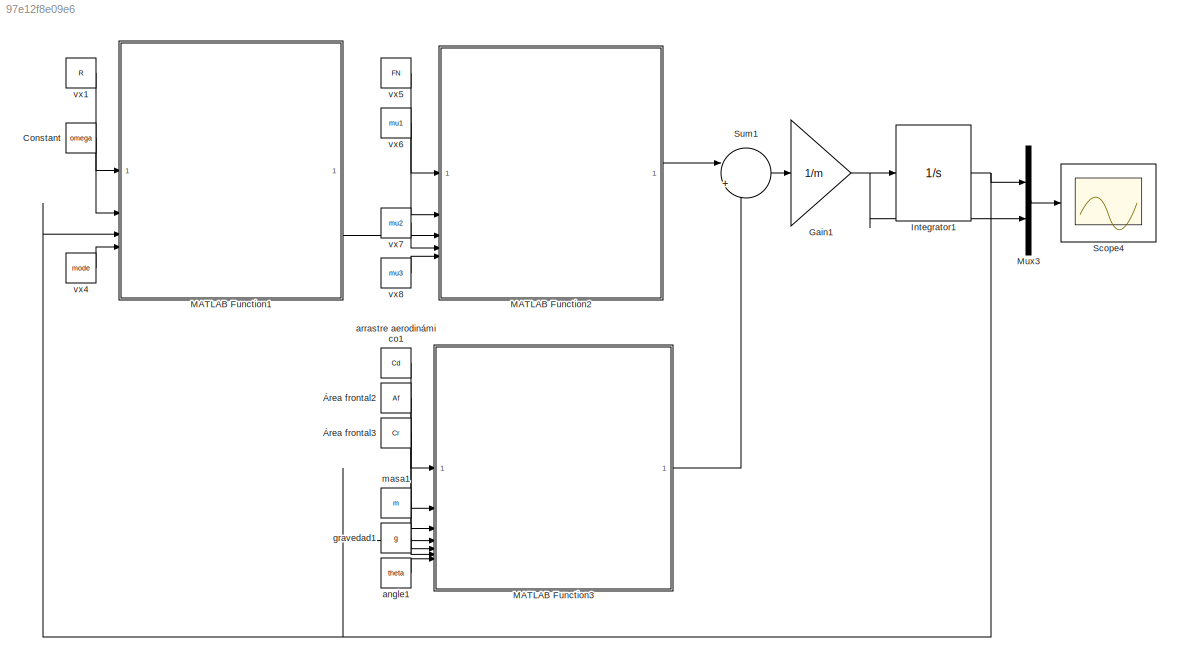
MODEL slx_97e12f8e09e6
KIND model
CONFIG AbsTol = auto
CONFIG EnableMultiTasking = off
CONFIG FixedStep = auto
CONFIG MaxStep = auto
CONFIG MinStep = auto
CONFIG RelTol = 1e-3
CONFIG SampleTimeConstraint = Unconstrained
CONFIG SolverName = VariableStepAuto
CONFIG StartTime = 0.0
CONFIG StopTime = 2
BLOCK [Constant] Constant
  Value = omega
BLOCK [Gain] Gain1
  Gain = 1/m
BLOCK [Integrator] Integrator1
  ZeroCross = off
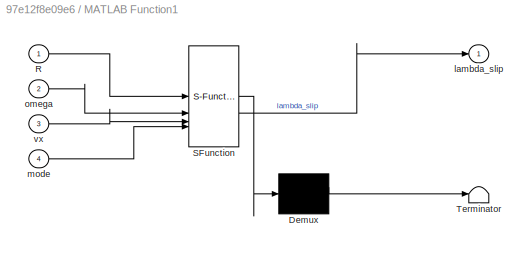
BLOCK [SubSystem] MATLAB Function1
  ErrorFcn = Stateflow.Translate.translate
  PermitHierarchicalResolution = ExplicitOnly
  SFBlockType = MATLAB Function
  TreatAsAtomicUnit = on
BLOCK [Demux] MATLAB Function1/ Demux 
  Outputs = 1
BLOCK [S-Function] MATLAB Function1/ SFunction 
  EnableBusSupport = on
  FunctionName = sf_sfun
  PortCounts = [4 2]
  SFcnIsStateOwnerBlock = off
  SFunctionDeploymentMode = off
  Tag = Stateflow S-Function 1
BLOCK [Terminator] MATLAB Function1/ Terminator 
BLOCK [Inport] MATLAB Function1/R
BLOCK [Outport] MATLAB Function1/lambda_slip
BLOCK [Inport] MATLAB Function1/mode
  Port = 4
BLOCK [Inport] MATLAB Function1/omega
  Port = 2
BLOCK [Inport] MATLAB Function1/vx
  Port = 3
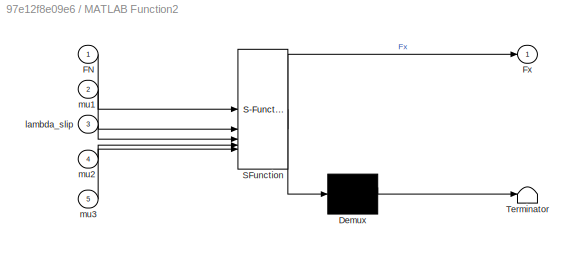
BLOCK [SubSystem] MATLAB Function2
  ErrorFcn = Stateflow.Translate.translate
  PermitHierarchicalResolution = ExplicitOnly
  SFBlockType = MATLAB Function
  TreatAsAtomicUnit = on
BLOCK [Demux] MATLAB Function2/ Demux 
  Outputs = 1
BLOCK [S-Function] MATLAB Function2/ SFunction 
  EnableBusSupport = on
  FunctionName = sf_sfun
  PortCounts = [5 2]
  SFcnIsStateOwnerBlock = off
  SFunctionDeploymentMode = off
  Tag = Stateflow S-Function 3
BLOCK [Terminator] MATLAB Function2/ Terminator 
BLOCK [Inport] MATLAB Function2/FN
BLOCK [Outport] MATLAB Function2/Fx
BLOCK [Inport] MATLAB Function2/lambda_slip
  Port = 3
BLOCK [Inport] MATLAB Function2/mu1
  Port = 2
BLOCK [Inport] MATLAB Function2/mu2
  Port = 4
BLOCK [Inport] MATLAB Function2/mu3
  Port = 5
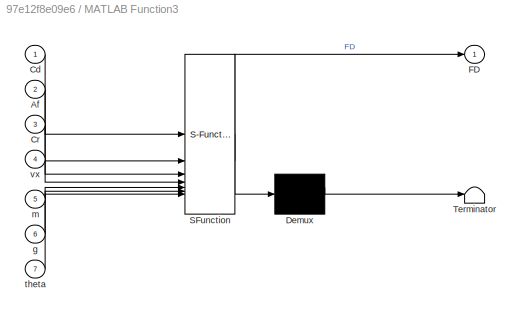
BLOCK [SubSystem] MATLAB Function3
  ErrorFcn = Stateflow.Translate.translate
  PermitHierarchicalResolution = ExplicitOnly
  SFBlockType = MATLAB Function
  TreatAsAtomicUnit = on
BLOCK [Demux] MATLAB Function3/ Demux 
  Outputs = 1
BLOCK [S-Function] MATLAB Function3/ SFunction 
  EnableBusSupport = on
  FunctionName = sf_sfun
  PortCounts = [7 2]
  SFcnIsStateOwnerBlock = off
  SFunctionDeploymentMode = off
  Tag = Stateflow S-Function 4
BLOCK [Terminator] MATLAB Function3/ Terminator 
BLOCK [Inport] MATLAB Function3/Af
  Port = 2
BLOCK [Inport] MATLAB Function3/Cd
BLOCK [Inport] MATLAB Function3/Cr
  Port = 3
BLOCK [Outport] MATLAB Function3/FD
BLOCK [Inport] MATLAB Function3/g
  Port = 6
BLOCK [Inport] MATLAB Function3/m
  Port = 5
BLOCK [Inport] MATLAB Function3/theta
  Port = 7
BLOCK [Inport] MATLAB Function3/vx
  Port = 4
BLOCK [Mux] Mux3
  DisplayOption = bar
  Inputs = 2
BLOCK [Scope] Scope4
  Floating = off
  NumInputPorts = 1
  ScopeSpecificationString = Simulink.scopes.TimeScopeBlockCfg('CurrentConfiguration', extmgr.ConfigurationSet(extmgr.Configuration('Core','General UI',true,'FigureColor',[1 1 1]),extmgr.Configuration('Core','Source UI',true),extmgr.Configuration('Sources','WiredSimulink',true),extmgr.Configuration('Visuals','Time Domain',true,'SerializedDisplays',{struct('MinYLimReal','-0.58423','MaxYLimReal','5.25804','YLabelReal','','MinYL...<+1518ch>
BLOCK [Sum] Sum1
  Inputs = |+-
BLOCK [Constant] angle1
  Value = theta
  VectorParams1D = off
BLOCK [Constant] arrastre aerodinámico1
  Value = Cd
  VectorParams1D = off
BLOCK [Constant] gravedad1
  Value = g
  VectorParams1D = off
BLOCK [Constant] masa1
  Value = m
  VectorParams1D = off
BLOCK [Constant] vx1
  SampleTime = R
  Value = R
  VectorParams1D = off
BLOCK [Constant] vx4
  SampleTime = mode
  Value = mode
  VectorParams1D = off
BLOCK [Constant] vx5
  SampleTime = R
  Value = FN
  VectorParams1D = off
BLOCK [Constant] vx6
  SampleTime = R
  Value = mu1
  VectorParams1D = off
BLOCK [Constant] vx7
  SampleTime = R
  Value = mu2
  VectorParams1D = off
BLOCK [Constant] vx8
  SampleTime = R
  Value = mu3
  VectorParams1D = off
BLOCK [Constant] Área frontal2
  Value = Af
  VectorParams1D = off
BLOCK [Constant] Área frontal3
  Value = Cr
  VectorParams1D = off
LINE Constant:1 -> MATLAB Function1:2
NET Gain1:1 -> Integrator1:1, Mux3:2
NET Integrator1:1 -> MATLAB Function1:3, MATLAB Function3:4, Mux3:1
LINE MATLAB Function1:1 -> MATLAB Function2:3
LINE MATLAB Function2:1 -> Sum1:1
LINE MATLAB Function3:1 -> Sum1:2
LINE Mux3:1 -> Scope4:1
LINE Sum1:1 -> Gain1:1
LINE angle1:1 -> MATLAB Function3:7
LINE arrastre aerodinámico1:1 -> MATLAB Function3:1
LINE gravedad1:1 -> MATLAB Function3:6
LINE masa1:1 -> MATLAB Function3:5
LINE vx1:1 -> MATLAB Function1:1
LINE vx4:1 -> MATLAB Function1:4
LINE vx5:1 -> MATLAB Function2:1
LINE vx6:1 -> MATLAB Function2:2
LINE vx7:1 -> MATLAB Function2:4
LINE vx8:1 -> MATLAB Function2:5
LINE Área frontal2:1 -> MATLAB Function3:2
LINE Área frontal3:1 -> MATLAB Function3:3
note: NET lines group one-source signal fan-out (src -> all destinations, sorted); 1:1 wires keep LINE
CHART MATLAB Function1 states=1 transitions=1
  STATE_LABEL 'eML_blk_kernel()'
  STATE_LABEL "SCRIPT:\nfunction lambda_slip = slip_ratio(R,omega,vx,mode)\n    epsilon = 1e-6; % Small threshold for near-zero values\n\n    if abs(vx) < epsilon\n        vx = sign(vx) * epsilon;\n    end\n    if abs(omega) < epsilon\n        omega = sign(omega) * epsilon;\n    end\n\n    if mode == 1  % 'braking'\n        if abs(R * omega - vx) < epsilon || abs(vx) < epsilon\n            lambda_slip = 0;\n        else\n     ...<+323ch>"
CHART MATLAB Function2 states=1 transitions=1
  STATE_LABEL 'eML_blk_kernel()'
  STATE_LABEL 'SCRIPT:\nfunction Fx = nonlinear_force(FN,mu1,lambda_slip,mu2,mu3)\n    mu_lambda = sign(lambda_slip) * (mu1 * (1 - exp(-abs(lambda_slip) * mu2)) - abs(lambda_slip) * mu3);\n    Fx = mu_lambda * FN;\nend\n'
CHART MATLAB Function3 states=1 transitions=1
  STATE_LABEL 'eML_blk_kernel()'
  STATE_LABEL 'SCRIPT:\nfunction FD = drag_force(Cd,Af,Cr,vx,m,g,theta)\n    rho = 1.225; \n    drag_term = 0.5 * rho * Cd * Af * vx^2;\n    if abs(vx) < 1e-3\n        drag_term = 0;  \n    end\n\n\n    rolling_resistance = Cr * m * g * cos(theta);\n\n \n    FD = drag_term + rolling_resistance;\n\n\n    if ~isfinite(FD)\n        FD = 0; \n    end\nend'
CHART  states=0 transitions=0
CHART  states=0 transitions=0
CHART  states=0 transitions=0
